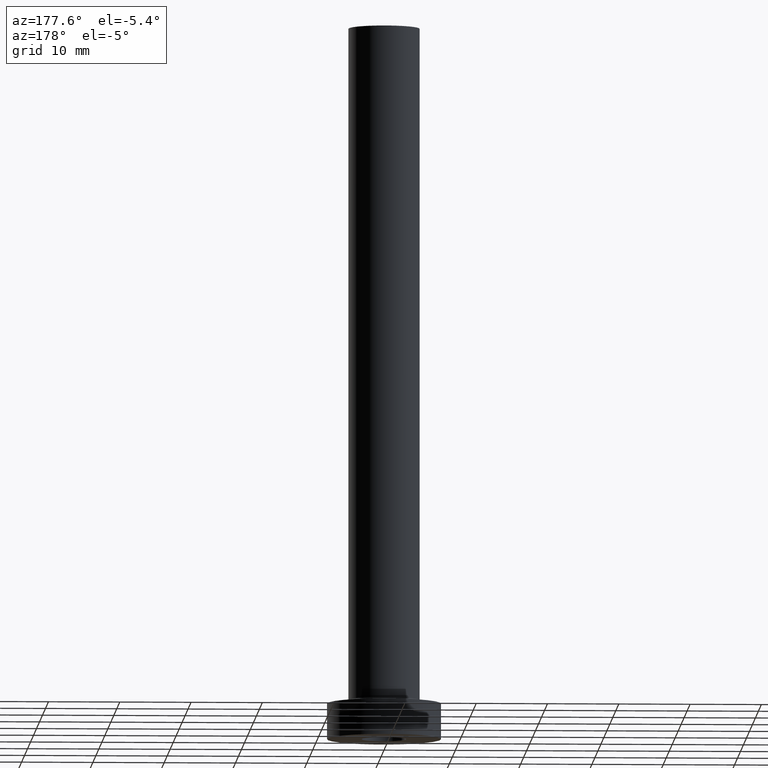
[diagram: clean part render]
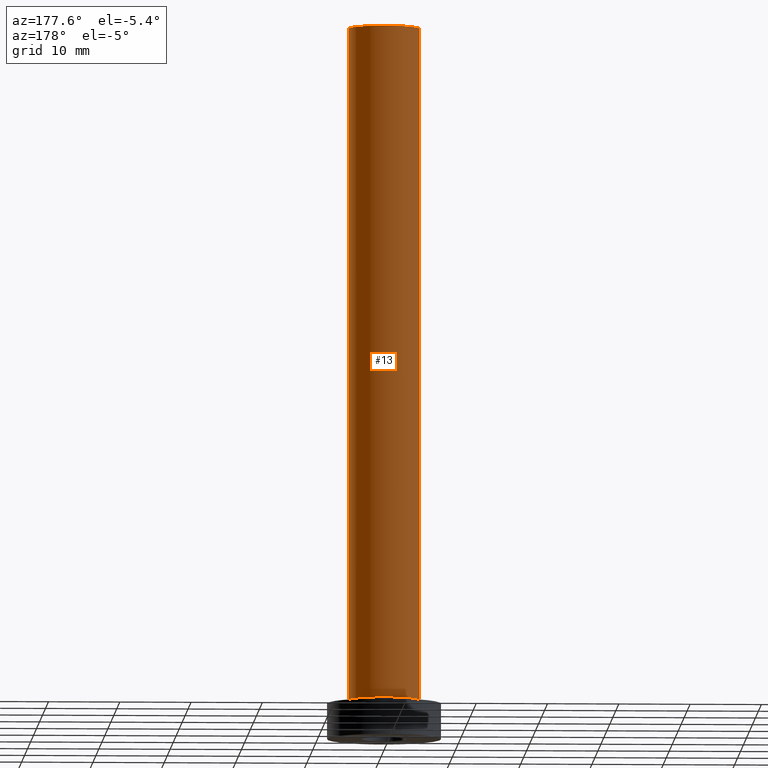
[diagram: same view with one face highlighted and labeled with its STEP entity id]
A machine part, auxiliary view. The second image highlights one B-rep face of the part: STEP entity #13.
In plain terms, the highlighted cylindrical surface (edge-blend (fillet) strip) has radius 5 mm, axis along (-0, -0, -1).
Its self-contained STEP definition (entity closure, byte-faithful):
#7 = DIRECTION ( 'NONE',  ( -1.000000000000000000, 0.000000000000000000, 0.000000000000000000 ) ) ;
#13 = ADVANCED_FACE ( 'NONE', ( #389 ), #318, .T. ) ;
#25 = CARTESIAN_POINT ( 'NONE',  ( -5.000000000000000000, 0.000000000000000000, 100.0000000000000000 ) ) ;
#34 = ORIENTED_EDGE ( 'NONE', *, *, #265, .T. ) ;
#46 = EDGE_CURVE ( 'NONE', #273, #340, #54, .T. ) ;
#54 = CIRCLE ( 'NONE', #306, 5.000000000000000000 ) ;
#58 = CARTESIAN_POINT ( 'NONE',  ( 5.000000000000000000, 6.123233995736766282E-16, 100.0000000000000000 ) ) ;
#69 = CARTESIAN_POINT ( 'NONE',  ( 0.000000000000000000, 0.000000000000000000, 100.0000000000000000 ) ) ;
#93 = CARTESIAN_POINT ( 'NONE',  ( 5.000000000000000000, 6.123233995736766282E-16, 100.0000000000000000 ) ) ;
#104 = LINE ( 'NONE', #394, #341 ) ;
#124 = AXIS2_PLACEMENT_3D ( 'NONE', #69, #431, #7 ) ;
#169 = DIRECTION ( 'NONE',  ( -0.000000000000000000, -0.000000000000000000, -1.000000000000000000 ) ) ;
#171 = CARTESIAN_POINT ( 'NONE',  ( 5.000000000000000000, 6.123233995736766282E-16, 5.500000000000005329 ) ) ;
#179 = DIRECTION ( 'NONE',  ( 0.000000000000000000, 0.000000000000000000, 1.000000000000000000 ) ) ;
#237 = AXIS2_PLACEMENT_3D ( 'NONE', #454, #346, #275 ) ;
#252 = EDGE_CURVE ( 'NONE', #273, #345, #272, .T. ) ;
#265 = EDGE_CURVE ( 'NONE', #345, #358, #410, .T. ) ;
#272 = LINE ( 'NONE', #93, #363 ) ;
#273 = VERTEX_POINT ( 'NONE', #58 ) ;
#275 = DIRECTION ( 'NONE',  ( 1.000000000000000000, 0.000000000000000000, 0.000000000000000000 ) ) ;
#304 = ORIENTED_EDGE ( 'NONE', *, *, #252, .T. ) ;
#306 = AXIS2_PLACEMENT_3D ( 'NONE', #428, #179, #314 ) ;
#314 = DIRECTION ( 'NONE',  ( 1.000000000000000000, 0.000000000000000000, 0.000000000000000000 ) ) ;
#318 = CYLINDRICAL_SURFACE ( 'NONE', #124, 5.000000000000000000 ) ;
#340 = VERTEX_POINT ( 'NONE', #25 ) ;
#341 = VECTOR ( 'NONE', #422, 1000.000000000000000 ) ;
#345 = VERTEX_POINT ( 'NONE', #171 ) ;
#346 = DIRECTION ( 'NONE',  ( 0.000000000000000000, 0.000000000000000000, 1.000000000000000000 ) ) ;
#358 = VERTEX_POINT ( 'NONE', #381 ) ;
#363 = VECTOR ( 'NONE', #169, 1000.000000000000000 ) ;
#377 = EDGE_LOOP ( 'NONE', ( #424, #304, #34, #421 ) ) ;
#381 = CARTESIAN_POINT ( 'NONE',  ( -5.000000000000000000, 0.000000000000000000, 5.500000000000005329 ) ) ;
#389 = FACE_OUTER_BOUND ( 'NONE', #377, .T. ) ;
#391 = EDGE_CURVE ( 'NONE', #340, #358, #104, .T. ) ;
#394 = CARTESIAN_POINT ( 'NONE',  ( -5.000000000000000000, 0.000000000000000000, 100.0000000000000000 ) ) ;
#410 = CIRCLE ( 'NONE', #237, 5.000000000000000000 ) ;
#421 = ORIENTED_EDGE ( 'NONE', *, *, #391, .F. ) ;
#422 = DIRECTION ( 'NONE',  ( -0.000000000000000000, -0.000000000000000000, -1.000000000000000000 ) ) ;
#424 = ORIENTED_EDGE ( 'NONE', *, *, #46, .F. ) ;
#428 = CARTESIAN_POINT ( 'NONE',  ( 0.000000000000000000, 0.000000000000000000, 100.0000000000000000 ) ) ;
#431 = DIRECTION ( 'NONE',  ( -0.000000000000000000, -0.000000000000000000, -1.000000000000000000 ) ) ;
#454 = CARTESIAN_POINT ( 'NONE',  ( 0.000000000000000000, 0.000000000000000000, 5.500000000000005329 ) ) ;